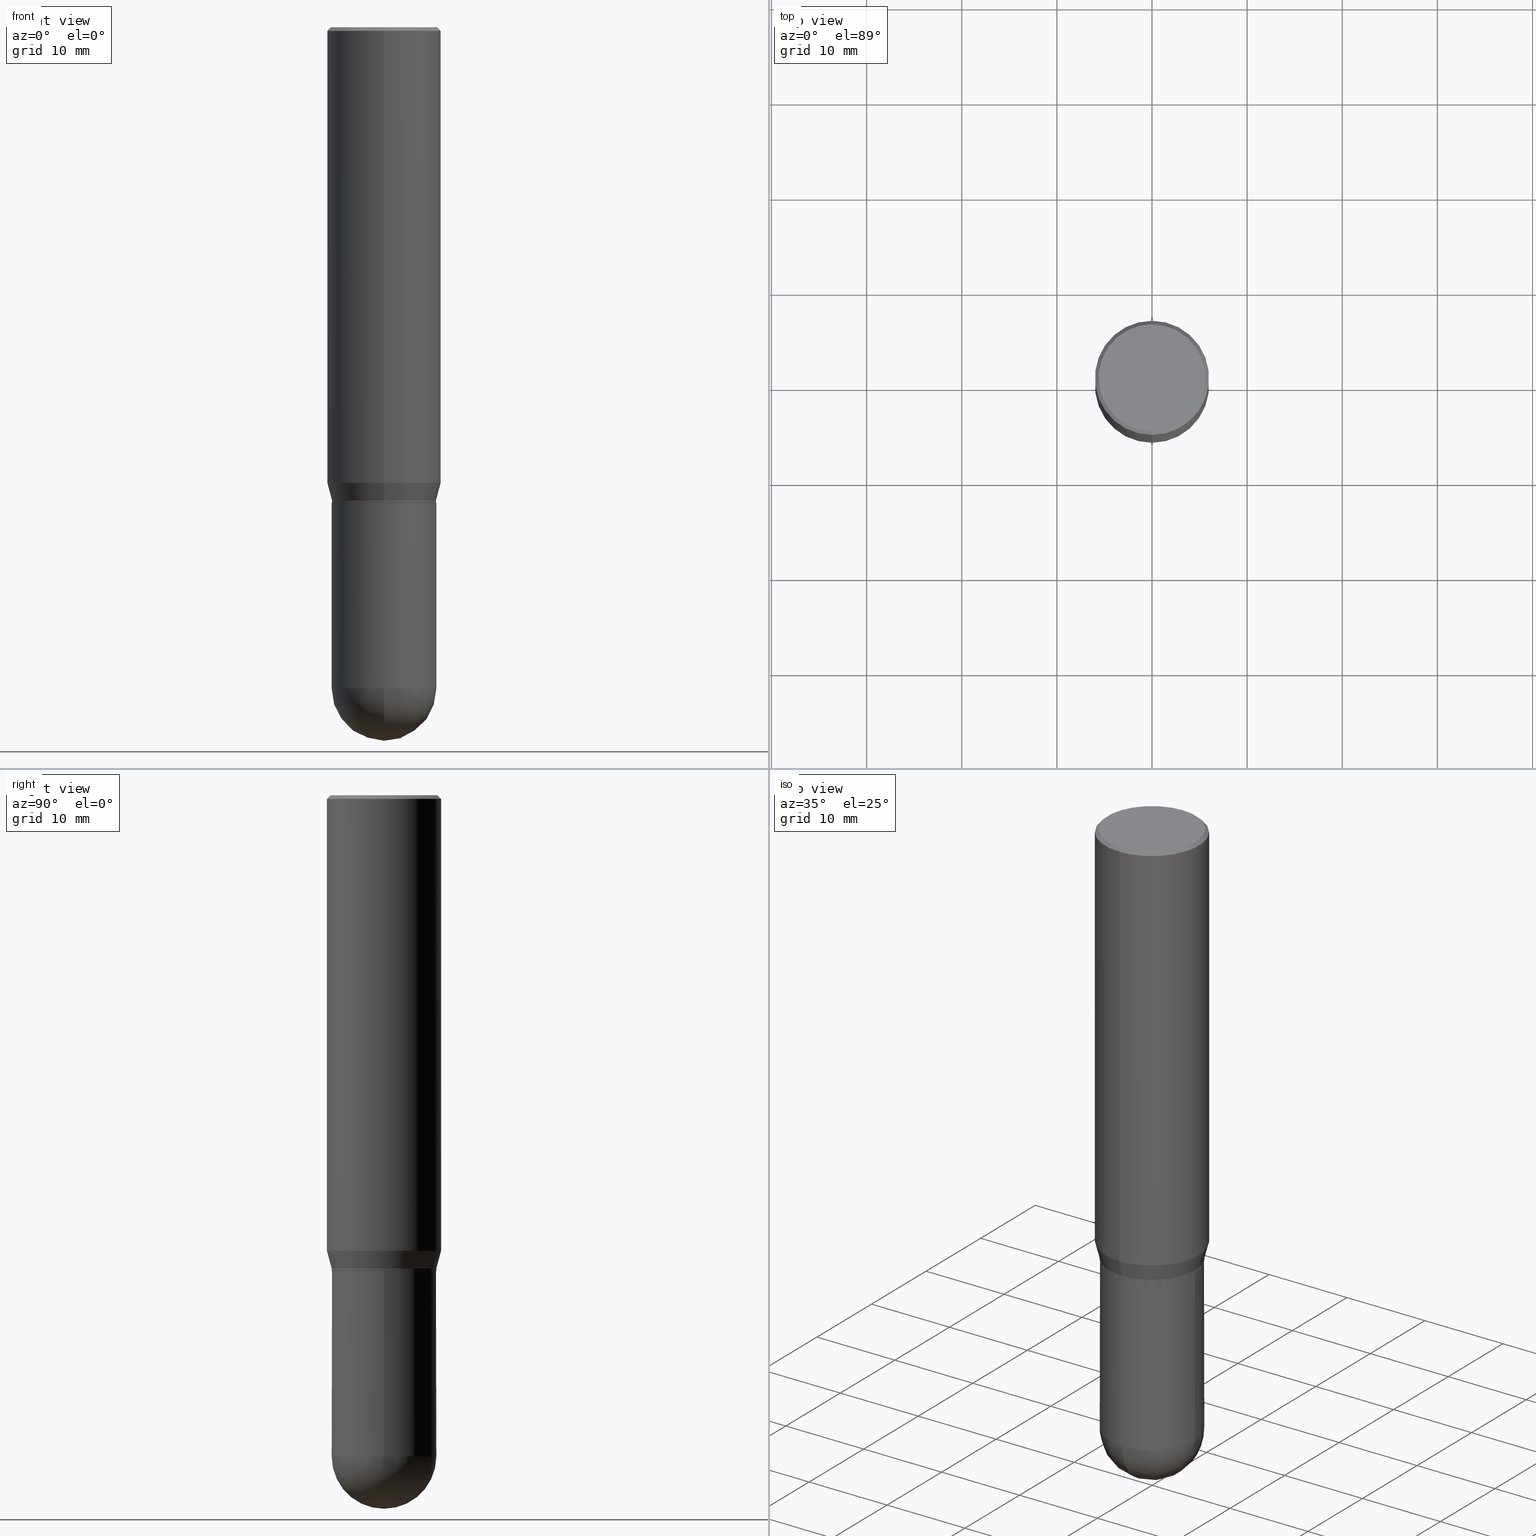
[diagram: canonical four-view strip — front | top / right | iso, engineering-drawing reading convention]
A machine part, canonical four-view strip (front | top / right | iso — engineering-drawing reading convention). The complete STEP part file that produces these views, byte-faithful:
ISO-10303-21;
HEADER;
FILE_DESCRIPTION (( 'STEP AP203' ),
    '1' );
FILE_NAME ('48877.STEP',
    '2024-03-08T13:34:52',
    ( '' ),
    ( '' ),
    'SwSTEP 2.0',
    'SolidWorks 2023',
    '' );
FILE_SCHEMA (( 'CONFIG_CONTROL_DESIGN' ));
ENDSEC;

DATA;
#1 = VERTEX_POINT ( 'NONE', #237 ) ;
#2 = CARTESIAN_POINT ( 'NONE',  ( 3.668468426843755121E-31, -5.236842201614738281E-17, -0.01499999999999978434 ) ) ;
#3 = CARTESIAN_POINT ( 'NONE',  ( -1.512160567852911913E-15, -0.2165500000000067371, -1.967999999999999083 ) ) ;
#4 = CLOSED_SHELL ( 'NONE', ( #165, #34, #481, #214, #74 ) ) ;
#5 = ORIENTED_EDGE ( 'NONE', *, *, #281, .F. ) ;
#6 = LOCAL_TIME ( 8, 34, 52.00000000000000000, #182 ) ;
#7 = LINE ( 'NONE', #193, #379 ) ;
#8 = MANIFOLD_SOLID_BREP ( 'Body-Move/Copy2[1]', #4 ) ;
#9 = ORIENTED_EDGE ( 'NONE', *, *, #396, .T. ) ;
#10 = ADVANCED_FACE ( 'NONE', ( #174 ), #456, .T. ) ;
#11 = CARTESIAN_POINT ( 'NONE',  ( 3.668468426843755121E-31, -5.236842201614738281E-17, -0.01499999999999978434 ) ) ;
#12 = ORIENTED_EDGE ( 'NONE', *, *, #239, .T. ) ;
#13 = EDGE_CURVE ( 'NONE', #58, #405, #32, .T. ) ;
#14 = CARTESIAN_POINT ( 'NONE',  ( 0.2165500000000000480, -9.725433982314102974E-15, -2.736249999999999183 ) ) ;
#15 = ORIENTED_EDGE ( 'NONE', *, *, #441, .T. ) ;
#16 = AXIS2_PLACEMENT_3D ( 'NONE', #434, #357, #486 ) ;
#17 = AXIS2_PLACEMENT_3D ( 'NONE', #31, #145, #185 ) ;
#18 = DIRECTION ( 'NONE',  ( -6.982962677686265922E-15, -1.000000000000000000, 3.793355233044567490E-15 ) ) ;
#19 = CC_DESIGN_PERSON_AND_ORGANIZATION_ASSIGNMENT ( #334, #508, ( #375 ) ) ;
#20 = SPHERICAL_SURFACE ( 'NONE', #226, 0.2165500000000001035 ) ;
#21 = CARTESIAN_POINT ( 'NONE',  ( -5.285488949794086623E-45, 7.545184629615168161E-31, 2.161183497362751472E-16 ) ) ;
#22 = EDGE_CURVE ( 'NONE', #1, #56, #130, .T. ) ;
#23 = ORIENTED_EDGE ( 'NONE', *, *, #143, .F. ) ;
#24 = CARTESIAN_POINT ( 'NONE',  ( -1.568995892090348679E-15, -0.2211999999999999800, 9.883780130677397050E-16 ) ) ;
#25 = DIRECTION ( 'NONE',  ( 1.000000000000000000, -6.982962677686264344E-15, 0.000000000000000000 ) ) ;
#26 = CIRCLE ( 'NONE', #49, 0.2165500000000000203 ) ;
#27 = CARTESIAN_POINT ( 'NONE',  ( 1.538680294288542061E-15, 0.2165499999999928316, -1.958500000000000796 ) ) ;
#28 = CARTESIAN_POINT ( 'NONE',  ( 6.672895394931898871E-29, -9.580085539845092024E-15, -2.736249999999999627 ) ) ;
#29 = CALENDAR_DATE ( 2024, 8, 3 ) ;
#30 = CARTESIAN_POINT ( 'NONE',  ( -1.538680294288430240E-15, -0.2165500000000096792, -2.736249999999998295 ) ) ;
#31 = CARTESIAN_POINT ( 'NONE',  ( 6.691414020924076964E-29, -9.553565813409554172E-15, -2.736249999999999183 ) ) ;
#32 = CIRCLE ( 'NONE', #76, 0.2165500000000000480 ) ;
#33 = CARTESIAN_POINT ( 'NONE',  ( -0.2165500000000000480, 1.538680294288497294E-15, -1.065195393794700063E-29 ) ) ;
#34 = ADVANCED_FACE ( 'NONE', ( #348 ), #20, .T. ) ;
#35 = PERSON_AND_ORGANIZATION ( #158, #505 ) ;
#36 = VERTEX_POINT ( 'NONE', #271 ) ;
#37 = CIRCLE ( 'NONE', #310, 0.2361999999999999933 ) ;
#38 = CC_DESIGN_APPROVAL ( #383, ( #375 ) ) ;
#39 = EDGE_CURVE ( 'NONE', #398, #228, #435, .T. ) ;
#40 = CARTESIAN_POINT ( 'NONE',  ( -1.649375784469449785E-15, -0.2362000000000065436, -1.885165201631269660 ) ) ;
#41 = ORIENTED_EDGE ( 'NONE', *, *, #22, .T. ) ;
#42 = EDGE_LOOP ( 'NONE', ( #152, #203, #512, #5 ) ) ;
#43 = DIRECTION ( 'NONE',  ( -2.445645617895871091E-29, 3.491228134409875712E-15, 1.000000000000000000 ) ) ;
#44 = ORIENTED_EDGE ( 'NONE', *, *, #438, .F. ) ;
#45 = DIRECTION ( 'NONE',  ( -1.000000000000000000, 7.105427357601001070E-15, -4.926315508542082329E-29 ) ) ;
#46 = AXIS2_PLACEMENT_3D ( 'NONE', #295, #364, #507 ) ;
#47 = AXIS2_PLACEMENT_3D ( 'NONE', #307, #465, #85 ) ;
#48 = DIRECTION ( 'NONE',  ( -2.445645617895871651E-29, 3.491228134409875712E-15, 1.000000000000000000 ) ) ;
#49 = AXIS2_PLACEMENT_3D ( 'NONE', #433, #394, #55 ) ;
#50 = EDGE_LOOP ( 'NONE', ( #389, #134, #450, #149 ) ) ;
#51 = DIRECTION ( 'NONE',  ( -2.445645617895871651E-29, 3.491228134409875712E-15, 1.000000000000000000 ) ) ;
#52 = EDGE_CURVE ( 'NONE', #424, #58, #502, .T. ) ;
#53 = ADVANCED_FACE ( 'NONE', ( #98 ), #259, .T. ) ;
#54 = DIRECTION ( 'NONE',  ( 1.000000000000000000, -6.982962677686263555E-15, 0.000000000000000000 ) ) ;
#55 = DIRECTION ( 'NONE',  ( 1.000000000000000000, -6.982962677686264344E-15, 0.000000000000000000 ) ) ;
#56 = VERTEX_POINT ( 'NONE', #332 ) ;
#57 = FACE_OUTER_BOUND ( 'NONE', #244, .T. ) ;
#58 = VERTEX_POINT ( 'NONE', #30 ) ;
#59 = VECTOR ( 'NONE', #349, 39.37007874015748143 ) ;
#60 = EDGE_CURVE ( 'NONE', #484, #88, #213, .T. ) ;
#61 =( CONVERSION_BASED_UNIT ( 'INCH', #279 ) LENGTH_UNIT ( ) NAMED_UNIT ( #79 ) );
#62 = ORIENTED_EDGE ( 'NONE', *, *, #250, .F. ) ;
#63 = FACE_OUTER_BOUND ( 'NONE', #71, .T. ) ;
#64 = CARTESIAN_POINT ( 'NONE',  ( 0.000000000000000000, 0.000000000000000000, 0.000000000000000000 ) ) ;
#65 = EDGE_CURVE ( 'NONE', #424, #338, #115, .T. ) ;
#66 = DIRECTION ( 'NONE',  ( -6.982962677686265922E-15, -1.000000000000000000, 3.491228134409875712E-15 ) ) ;
#67 = AXIS2_PLACEMENT_3D ( 'NONE', #282, #146, #171 ) ;
#68 = CARTESIAN_POINT ( 'NONE',  ( 1.597003564386849249E-15, 0.2211999999999999800, -5.561413135951892626E-16 ) ) ;
#69 = DIRECTION ( 'NONE',  ( -6.982962677686265922E-15, -1.000000000000000000, 3.491228134409875712E-15 ) ) ;
#70 = DIRECTION ( 'NONE',  ( 1.000000000000000000, -6.982962677686266711E-15, 4.876176775795935793E-29 ) ) ;
#71 = EDGE_LOOP ( 'NONE', ( #23, #247, #328, #353 ) ) ;
#72 = APPROVAL_STATUS ( 'not_yet_approved' ) ;
#73 = CYLINDRICAL_SURFACE ( 'NONE', #46, 0.2165499999999997982 ) ;
#74 = ADVANCED_FACE ( 'NONE', ( #506 ), #102, .T. ) ;
#75 = PERSON_AND_ORGANIZATION ( #158, #505 ) ;
#76 = AXIS2_PLACEMENT_3D ( 'NONE', #277, #442, #54 ) ;
#77 = VECTOR ( 'NONE', #162, 39.37007874015748143 ) ;
#78 = CALENDAR_DATE ( 2024, 8, 3 ) ;
#79 = DIMENSIONAL_EXPONENTS ( 1.000000000000000000, 0.000000000000000000, 0.000000000000000000, 0.000000000000000000, 0.000000000000000000, 0.000000000000000000, 0.000000000000000000 ) ;
#80 = COORDINATED_UNIVERSAL_TIME_OFFSET ( 5, 0, .BEHIND. ) ;
#81 = DIRECTION ( 'NONE',  ( -7.105427357601001070E-15, -1.000000000000000000, 0.000000000000000000 ) ) ;
#82 = AXIS2_PLACEMENT_3D ( 'NONE', #138, #387, #393 ) ;
#83 = AXIS2_PLACEMENT_3D ( 'NONE', #177, #241, #97 ) ;
#84 = LOCAL_TIME ( 8, 34, 52.00000000000000000, #264 ) ;
#85 = DIRECTION ( 'NONE',  ( 6.982962677686265922E-15, 1.000000000000000000, -3.491228134409875712E-15 ) ) ;
#86 = DIRECTION ( 'NONE',  ( -6.982962677686265922E-15, -1.000000000000000000, 3.487819265831411744E-15 ) ) ;
#87 = ORIENTED_EDGE ( 'NONE', *, *, #65, .F. ) ;
#88 = VERTEX_POINT ( 'NONE', #500 ) ;
#89 = DIRECTION ( 'NONE',  ( -2.445645617895871651E-29, 3.491228134409875712E-15, 1.000000000000000000 ) ) ;
#90 = AXIS2_PLACEMENT_3D ( 'NONE', #406, #245, #69 ) ;
#91 = AXIS2_PLACEMENT_3D ( 'NONE', #106, #346, #478 ) ;
#92 = DIRECTION ( 'NONE',  ( 6.982962677686265922E-15, 1.000000000000000000, -2.523064413451176940E-15 ) ) ;
#93 = CARTESIAN_POINT ( 'NONE',  ( -1.649375784469495934E-15, -0.2361999999999999933, 8.246280853476126431E-16 ) ) ;
#94 = ORIENTED_EDGE ( 'NONE', *, *, #384, .F. ) ;
#95 = DIRECTION ( 'NONE',  ( -2.445645617895871651E-29, 3.491228134409875712E-15, 1.000000000000000000 ) ) ;
#96 = CARTESIAN_POINT ( 'NONE',  ( 1.678301941865356394E-15, 0.2361999999999999933, -8.246280853476126431E-16 ) ) ;
#97 = DIRECTION ( 'NONE',  ( -1.000000000000000000, 6.982962677686265922E-15, -4.876176775795935793E-29 ) ) ;
#98 = FACE_OUTER_BOUND ( 'NONE', #42, .T. ) ;
#99 = CIRCLE ( 'NONE', #261, 0.2160500000000000198 ) ;
#100 = CC_DESIGN_APPROVAL ( #368, ( #285 ) ) ;
#101 = LINE ( 'NONE', #108, #356 ) ;
#102 = CYLINDRICAL_SURFACE ( 'NONE', #373, 0.2165500000000000480 ) ;
#103 = CARTESIAN_POINT ( 'NONE',  ( 0.000000000000000000, 0.000000000000000000, 0.000000000000000000 ) ) ;
#104 = ADVANCED_FACE ( 'NONE', ( #415 ), #366, .T. ) ;
#105 = VERTEX_POINT ( 'NONE', #210 ) ;
#106 = CARTESIAN_POINT ( 'NONE',  ( 4.813030576019074836E-29, -6.870736968518634247E-15, -1.967999999999999972 ) ) ;
#107 = PRODUCT_DEFINITION_SHAPE ( 'NONE', 'NONE',  #113 ) ;
#108 = CARTESIAN_POINT ( 'NONE',  ( 0.2165500000000000480, -1.512160567852961414E-15, 1.055936080798610176E-29 ) ) ;
#109 = DIRECTION ( 'NONE',  ( -6.982962677686265922E-15, -1.000000000000000000, 3.793355233044567490E-15 ) ) ;
#110 = AXIS2_PLACEMENT_3D ( 'NONE', #2, #200, #86 ) ;
#111 = SHAPE_DEFINITION_REPRESENTATION ( #107, #122 ) ;
#112 = CYLINDRICAL_SURFACE ( 'NONE', #336, 0.2165500000000000480 ) ;
#113 = PRODUCT_DEFINITION ( 'UNKNOWN', '', #285, #352 ) ;
#114 = CALENDAR_DATE ( 2024, 8, 3 ) ;
#115 = LINE ( 'NONE', #33, #118 ) ;
#116 = PERSON_AND_ORGANIZATION_ROLE ( 'creator' ) ;
#117 = FACE_OUTER_BOUND ( 'NONE', #509, .T. ) ;
#118 = VECTOR ( 'NONE', #255, 39.37007874015748143 ) ;
#119 = AXIS2_PLACEMENT_3D ( 'NONE', #195, #45, #81 ) ;
#120 = AXIS2_PLACEMENT_3D ( 'NONE', #103, #179, #294 ) ;
#121 = DATE_TIME_ROLE ( 'creation_date' ) ;
#122 = ADVANCED_BREP_SHAPE_REPRESENTATION ( '48877', ( #8, #318, #120 ), #293 ) ;
#123 = ADVANCED_FACE ( 'NONE', ( #463 ), #327, .T. ) ;
#124 = ORIENTED_EDGE ( 'NONE', *, *, #396, .F. ) ;
#125 = LINE ( 'NONE', #93, #273 ) ;
#126 = AXIS2_PLACEMENT_3D ( 'NONE', #172, #404, #198 ) ;
#127 = AXIS2_PLACEMENT_3D ( 'NONE', #269, #231, #437 ) ;
#128 = DIRECTION ( 'NONE',  ( -4.851104656540965064E-15, -0.7071067811865501263, -0.7071067811865449082 ) ) ;
#129 = DIRECTION ( 'NONE',  ( 6.982962677686265922E-15, 1.000000000000000000, -3.487819265831411744E-15 ) ) ;
#130 = LINE ( 'NONE', #96, #426 ) ;
#131 = PLANE ( 'NONE',  #186 ) ;
#132 = ADVANCED_FACE ( 'NONE', ( #63 ), #73, .T. ) ;
#133 = CIRCLE ( 'NONE', #411, 0.2211999999999999800 ) ;
#134 = ORIENTED_EDGE ( 'NONE', *, *, #60, .T. ) ;
#135 = CC_DESIGN_SECURITY_CLASSIFICATION ( #375, ( #285 ) ) ;
#136 = DIRECTION ( 'NONE',  ( -2.445645617895871651E-29, 3.491228134409875712E-15, 1.000000000000000000 ) ) ;
#137 = EDGE_CURVE ( 'NONE', #432, #105, #258, .T. ) ;
#138 = CARTESIAN_POINT ( 'NONE',  ( 4.814253398828022237E-29, -6.872482582585839042E-15, -1.968499999999999694 ) ) ;
#139 = ORIENTED_EDGE ( 'NONE', *, *, #160, .T. ) ;
#140 = DIRECTION ( 'NONE',  ( -6.982962677686265922E-15, -1.000000000000000000, 3.784596620176768566E-15 ) ) ;
#141 = ORIENTED_EDGE ( 'NONE', *, *, #354, .F. ) ;
#142 = CIRCLE ( 'NONE', #196, 0.2165500000000000480 ) ;
#143 = EDGE_CURVE ( 'NONE', #88, #228, #151, .T. ) ;
#144 = DIRECTION ( 'NONE',  ( 1.000000000000000000, -6.982962677686263555E-15, 0.000000000000000000 ) ) ;
#145 = DIRECTION ( 'NONE',  ( -2.445468806185136597E-29, 3.491481338843145583E-15, 1.000000000000000000 ) ) ;
#146 = DIRECTION ( 'NONE',  ( -2.445645617895871651E-29, 3.491228134409875712E-15, 1.000000000000000000 ) ) ;
#147 = CARTESIAN_POINT ( 'NONE',  ( 4.814253398828022237E-29, -6.872482582585839042E-15, -1.968499999999999694 ) ) ;
#148 = PERSON_AND_ORGANIZATION ( #158, #505 ) ;
#149 = ORIENTED_EDGE ( 'NONE', *, *, #160, .F. ) ;
#150 = CC_DESIGN_PERSON_AND_ORGANIZATION_ASSIGNMENT ( #367, #298, ( #488 ) ) ;
#151 = LINE ( 'NONE', #155, #361 ) ;
#152 = ORIENTED_EDGE ( 'NONE', *, *, #39, .T. ) ;
#153 = DIRECTION ( 'NONE',  ( 1.000000000000000000, -6.982962677686266711E-15, 4.876176775795935793E-29 ) ) ;
#154 = PERSON_AND_ORGANIZATION_ROLE ( 'design_supplier' ) ;
#155 = CARTESIAN_POINT ( 'NONE',  ( 1.538680294288495321E-15, 0.2165499999999997982, -7.560254525064579218E-16 ) ) ;
#156 = SECURITY_CLASSIFICATION_LEVEL ( 'unclassified' ) ;
#157 = APPLICATION_PROTOCOL_DEFINITION ( 'international standard', 'config_control_design', 1994, #303 ) ;
#158 = PERSON ( 'UNSPECIFIED', 'UNSPECIFIED', 'UNSPECIFIED', ('UNSPECIFIED'), ('UNSPECIFIED'), ('UNSPECIFIED') ) ;
#159 = DIRECTION ( 'NONE',  ( -2.445645617895871651E-29, 3.491228134409875712E-15, 1.000000000000000000 ) ) ;
#160 = EDGE_CURVE ( 'NONE', #350, #385, #188, .T. ) ;
#161 = ORIENTED_EDGE ( 'NONE', *, *, #60, .F. ) ;
#162 = DIRECTION ( 'NONE',  ( 4.937700262164548831E-15, 0.7071067811865452413, -0.7071067811865497932 ) ) ;
#163 = CARTESIAN_POINT ( 'NONE',  ( -0.2165500000000000480, -6.674593120172645055E-15, -2.736249999999999183 ) ) ;
#164 = ORIENTED_EDGE ( 'NONE', *, *, #181, .T. ) ;
#165 = ADVANCED_FACE ( 'NONE', ( #460 ), #112, .T. ) ;
#166 = CARTESIAN_POINT ( 'NONE',  ( -1.512160567852910730E-15, -0.2165500000000064873, -1.958499999999999019 ) ) ;
#167 = ORIENTED_EDGE ( 'NONE', *, *, #183, .F. ) ;
#168 = DIRECTION ( 'NONE',  ( -2.445468806185136877E-29, 3.491481338843145188E-15, 1.000000000000000000 ) ) ;
#169 = AXIS2_PLACEMENT_3D ( 'NONE', #205, #95, #212 ) ;
#170 = ORIENTED_EDGE ( 'NONE', *, *, #13, .T. ) ;
#171 = DIRECTION ( 'NONE',  ( -6.982962677686265922E-15, -1.000000000000000000, 3.784596620176773299E-15 ) ) ;
#172 = CARTESIAN_POINT ( 'NONE',  ( 4.789796942649064112E-29, -6.837570301241741551E-15, -1.958499999999999908 ) ) ;
#173 = ORIENTED_EDGE ( 'NONE', *, *, #453, .F. ) ;
#174 = FACE_OUTER_BOUND ( 'NONE', #50, .T. ) ;
#175 = ORIENTED_EDGE ( 'NONE', *, *, #371, .T. ) ;
#176 = DIRECTION ( 'NONE',  ( -2.445468806185136597E-29, 3.491481338843145583E-15, 1.000000000000000000 ) ) ;
#177 = CARTESIAN_POINT ( 'NONE',  ( 1.512160567853008943E-15, 0.2165499999999931369, -1.968500000000000583 ) ) ;
#178 = DIRECTION ( 'NONE',  ( -4.937700262164715281E-15, -0.7071067811865691111, 0.7071067811865257013 ) ) ;
#179 = DIRECTION ( 'NONE',  ( 0.000000000000000000, 0.000000000000000000, 1.000000000000000000 ) ) ;
#180 = DIRECTION ( 'NONE',  ( -2.445645617895871651E-29, 3.491228134409875712E-15, 1.000000000000000000 ) ) ;
#181 = EDGE_CURVE ( 'NONE', #338, #221, #283, .T. ) ;
#182 = COORDINATED_UNIVERSAL_TIME_OFFSET ( 5, 0, .BEHIND. ) ;
#183 = EDGE_CURVE ( 'NONE', #484, #350, #99, .T. ) ;
#184 = ORIENTED_EDGE ( 'NONE', *, *, #223, .F. ) ;
#185 = DIRECTION ( 'NONE',  ( 1.000000000000000000, -6.982962677686263555E-15, 0.000000000000000000 ) ) ;
#186 = AXIS2_PLACEMENT_3D ( 'NONE', #386, #43, #296 ) ;
#187 = LOCAL_TIME ( 8, 34, 52.00000000000000000, #376 ) ;
#188 = LINE ( 'NONE', #447, #457 ) ;
#189 = APPROVAL_ROLE ( '' ) ;
#190 = APPROVAL_STATUS ( 'not_yet_approved' ) ;
#191 = VECTOR ( 'NONE', #407, 39.37007874015748143 ) ;
#192 = EDGE_LOOP ( 'NONE', ( #339, #341 ) ) ;
#193 = CARTESIAN_POINT ( 'NONE',  ( -1.620449627073635079E-15, -0.2362000000000000766, -0.01499999999999896035 ) ) ;
#194 = CARTESIAN_POINT ( 'NONE',  ( -1.508669086514069695E-15, -0.2160500000000068754, -1.968499999999999028 ) ) ;
#195 = CARTESIAN_POINT ( 'NONE',  ( 6.672895394931898871E-29, -9.580085539845092024E-15, -2.736249999999999627 ) ) ;
#196 = AXIS2_PLACEMENT_3D ( 'NONE', #309, #443, #144 ) ;
#197 = APPROVAL_PERSON_ORGANIZATION ( #148, #368, #421 ) ;
#198 = DIRECTION ( 'NONE',  ( -6.982962677686265922E-15, -1.000000000000000000, 3.784596620176773299E-15 ) ) ;
#199 = EDGE_LOOP ( 'NONE', ( #301, #9, #358, #184 ) ) ;
#200 = DIRECTION ( 'NONE',  ( -2.445645617895871651E-29, 3.491228134409875712E-15, 1.000000000000000000 ) ) ;
#201 = ORIENTED_EDGE ( 'NONE', *, *, #378, .F. ) ;
#202 = PLANE ( 'NONE',  #47 ) ;
#203 = ORIENTED_EDGE ( 'NONE', *, *, #448, .T. ) ;
#204 = EDGE_LOOP ( 'NONE', ( #425, #370, #232, #395 ) ) ;
#205 = CARTESIAN_POINT ( 'NONE',  ( -5.285488949794086623E-45, 7.545184629615168161E-31, 2.161183497362751472E-16 ) ) ;
#206 = EDGE_LOOP ( 'NONE', ( #313, #44, #306, #242 ) ) ;
#207 = CARTESIAN_POINT ( 'NONE',  ( 4.789796942649064112E-29, -6.837570301241741551E-15, -1.958499999999999908 ) ) ;
#208 = EDGE_LOOP ( 'NONE', ( #124, #217, #490, #462 ) ) ;
#209 = DIRECTION ( 'NONE',  ( -2.445645617895871651E-29, 3.491228134409875712E-15, 1.000000000000000000 ) ) ;
#210 = CARTESIAN_POINT ( 'NONE',  ( 1.512160567853028073E-15, 0.2165499999999904723, -2.736249999999999627 ) ) ;
#211 = AXIS2_PLACEMENT_3D ( 'NONE', #452, #397, #140 ) ;
#212 = DIRECTION ( 'NONE',  ( -6.982962677686266711E-15, -1.000000000000000000, 3.491228134409875712E-15 ) ) ;
#213 = LINE ( 'NONE', #496, #335 ) ;
#214 = ADVANCED_FACE ( 'NONE', ( #323 ), #251, .T. ) ;
#215 = DATE_AND_TIME ( #114, #459 ) ;
#216 = CARTESIAN_POINT ( 'NONE',  ( 4.813905344975440714E-29, -6.872981015512730918E-15, -1.968499999999999694 ) ) ;
#217 = ORIENTED_EDGE ( 'NONE', *, *, #137, .T. ) ;
#218 = DIRECTION ( 'NONE',  ( -6.982962677686265922E-15, -1.000000000000000000, 3.784596620176773299E-15 ) ) ;
#219 = CIRCLE ( 'NONE', #110, 0.2361999999999999933 ) ;
#220 = DATE_AND_TIME ( #29, #6 ) ;
#221 = VERTEX_POINT ( 'NONE', #369 ) ;
#222 = MECHANICAL_CONTEXT ( 'NONE', #511, 'mechanical' ) ;
#223 = EDGE_CURVE ( 'NONE', #105, #424, #321, .T. ) ;
#224 = DATE_AND_TIME ( #461, #436 ) ;
#225 = EDGE_LOOP ( 'NONE', ( #268, #381, #342, #234 ) ) ;
#226 = AXIS2_PLACEMENT_3D ( 'NONE', #315, #399, #92 ) ;
#227 = ORIENTED_EDGE ( 'NONE', *, *, #181, .F. ) ;
#228 = VERTEX_POINT ( 'NONE', #329 ) ;
#229 = CARTESIAN_POINT ( 'NONE',  ( -1.512160567852959442E-15, -0.2165499999999997982, 7.560254525064579218E-16 ) ) ;
#230 = EDGE_CURVE ( 'NONE', #385, #88, #390, .T. ) ;
#231 = DIRECTION ( 'NONE',  ( 2.445645617895871651E-29, -3.491228134409875712E-15, -1.000000000000000000 ) ) ;
#232 = ORIENTED_EDGE ( 'NONE', *, *, #250, .T. ) ;
#233 = CARTESIAN_POINT ( 'NONE',  ( 4.814253398828022237E-29, -6.872482582585839042E-15, -1.968499999999999694 ) ) ;
#234 = ORIENTED_EDGE ( 'NONE', *, *, #471, .F. ) ;
#235 = CARTESIAN_POINT ( 'NONE',  ( 4.610446014379303463E-29, -6.581541789945557282E-15, -1.885165201631270548 ) ) ;
#236 = AXIS2_PLACEMENT_3D ( 'NONE', #380, #270, #272 ) ;
#237 = CARTESIAN_POINT ( 'NONE',  ( 1.678301941865402543E-15, 0.2361999999999934430, -1.885165201631271215 ) ) ;
#238 = FACE_OUTER_BOUND ( 'NONE', #308, .T. ) ;
#239 = EDGE_CURVE ( 'NONE', #36, #56, #219, .T. ) ;
#240 = ORIENTED_EDGE ( 'NONE', *, *, #489, .T. ) ;
#241 = DIRECTION ( 'NONE',  ( 2.438088387897960049E-29, -3.491481338843145188E-15, -1.000000000000000000 ) ) ;
#242 = ORIENTED_EDGE ( 'NONE', *, *, #416, .T. ) ;
#243 = AXIS2_PLACEMENT_3D ( 'NONE', #11, #304, #474 ) ;
#244 = EDGE_LOOP ( 'NONE', ( #161, #317, #139, #173 ) ) ;
#245 = DIRECTION ( 'NONE',  ( -2.445645617895871651E-29, 3.491228134409875712E-15, 1.000000000000000000 ) ) ;
#246 = DIRECTION ( 'NONE',  ( -2.445645617895871651E-29, 3.491228134409875712E-15, 1.000000000000000000 ) ) ;
#247 = ORIENTED_EDGE ( 'NONE', *, *, #453, .T. ) ;
#248 = DIRECTION ( 'NONE',  ( 5.024295867788231995E-15, 0.7071067811865739960, 0.7071067811865208164 ) ) ;
#249 = LINE ( 'NONE', #27, #191 ) ;
#250 = EDGE_CURVE ( 'NONE', #408, #36, #125, .T. ) ;
#251 = SPHERICAL_SURFACE ( 'NONE', #266, 0.2165500000000001035 ) ;
#252 = AXIS2_PLACEMENT_3D ( 'NONE', #305, #476, #129 ) ;
#253 = EDGE_CURVE ( 'NONE', #228, #398, #402, .T. ) ;
#254 = CARTESIAN_POINT ( 'NONE',  ( 0.000000000000000000, 0.000000000000000000, 0.000000000000000000 ) ) ;
#255 = DIRECTION ( 'NONE',  ( -2.445468806185136877E-29, 3.491481338843145188E-15, 1.000000000000000000 ) ) ;
#256 = PRODUCT_RELATED_PRODUCT_CATEGORY ( 'detail', '', ( #488 ) ) ;
#257 = CARTESIAN_POINT ( 'NONE',  ( -1.512160567852910730E-15, -0.2165500000000064873, -1.958499999999999019 ) ) ;
#258 = CIRCLE ( 'NONE', #388, 0.2165500000000001035 ) ;
#259 = CONICAL_SURFACE ( 'NONE', #400, 0.2165499999999996594, 0.2617993877991502405 ) ;
#260 = EDGE_CURVE ( 'NONE', #350, #484, #374, .T. ) ;
#261 = AXIS2_PLACEMENT_3D ( 'NONE', #147, #454, #109 ) ;
#262 = PERSON_AND_ORGANIZATION ( #158, #505 ) ;
#263 = ORIENTED_EDGE ( 'NONE', *, *, #230, .T. ) ;
#264 = COORDINATED_UNIVERSAL_TIME_OFFSET ( 5, 0, .BEHIND. ) ;
#265 = EDGE_LOOP ( 'NONE', ( #87, #312, #170, #240, #227 ) ) ;
#266 = AXIS2_PLACEMENT_3D ( 'NONE', #412, #286, #451 ) ;
#267 = DIRECTION ( 'NONE',  ( -2.445645617895871651E-29, 3.491228134409875712E-15, 1.000000000000000000 ) ) ;
#268 = ORIENTED_EDGE ( 'NONE', *, *, #448, .F. ) ;
#269 = CARTESIAN_POINT ( 'NONE',  ( 3.668468426843755121E-31, -5.236842201614738281E-17, -0.01499999999999978434 ) ) ;
#270 = DIRECTION ( 'NONE',  ( -2.445645617895871651E-29, 3.491228134409875712E-15, 1.000000000000000000 ) ) ;
#271 = CARTESIAN_POINT ( 'NONE',  ( -1.649375784469495539E-15, -0.2362000000000000766, -0.01499999999999896035 ) ) ;
#272 = DIRECTION ( 'NONE',  ( -6.982962677686265922E-15, -1.000000000000000000, 3.784596620176773299E-15 ) ) ;
#273 = VECTOR ( 'NONE', #267, 39.37007874015748143 ) ;
#274 = APPROVAL_PERSON_ORGANIZATION ( #262, #413, #189 ) ;
#275 = ORIENTED_EDGE ( 'NONE', *, *, #65, .T. ) ;
#276 = DIRECTION ( 'NONE',  ( -2.445645617895871651E-29, 3.491228134409875712E-15, 1.000000000000000000 ) ) ;
#277 = CARTESIAN_POINT ( 'NONE',  ( 6.691414020924076964E-29, -9.553565813409554172E-15, -2.736249999999999183 ) ) ;
#278 = CC_DESIGN_PERSON_AND_ORGANIZATION_ASSIGNMENT ( #501, #154, ( #285 ) ) ;
#279 = LENGTH_MEASURE_WITH_UNIT ( LENGTH_MEASURE( 0.02539999999999999897 ), #314 );
#280 = ORIENTED_EDGE ( 'NONE', *, *, #239, .F. ) ;
#281 = EDGE_CURVE ( 'NONE', #398, #408, #469, .T. ) ;
#282 = CARTESIAN_POINT ( 'NONE',  ( 4.789796942649064112E-29, -6.837570301241741551E-15, -1.958499999999999908 ) ) ;
#283 = CIRCLE ( 'NONE', #504, 0.2165500000000000203 ) ;
#284 = ORIENTED_EDGE ( 'NONE', *, *, #260, .F. ) ;
#285 = PRODUCT_DEFINITION_FORMATION_WITH_SPECIFIED_SOURCE ( 'ANY', '', #488, .NOT_KNOWN. ) ;
#286 = DIRECTION ( 'NONE',  ( -1.000000000000000000, 6.982962677686265922E-15, -4.883557194083112340E-29 ) ) ;
#287 = FACE_OUTER_BOUND ( 'NONE', #225, .T. ) ;
#288 = ADVANCED_FACE ( 'NONE', ( #302 ), #202, .F. ) ;
#289 = DIRECTION ( 'NONE',  ( 6.982962677686265922E-15, 1.000000000000000000, 0.000000000000000000 ) ) ;
#290 = DATE_AND_TIME ( #464, #187 ) ;
#291 = DIRECTION ( 'NONE',  ( -2.445645617895871651E-29, 3.491228134409875712E-15, 1.000000000000000000 ) ) ;
#292 = CONICAL_SURFACE ( 'NONE', #67, 0.2165499999999996594, 0.2617993877991502405 ) ;
#293 =( GEOMETRIC_REPRESENTATION_CONTEXT ( 3 ) GLOBAL_UNCERTAINTY_ASSIGNED_CONTEXT ( ( #470 ) ) GLOBAL_UNIT_ASSIGNED_CONTEXT ( ( #61, #359, #449 ) ) REPRESENTATION_CONTEXT ( 'NONE', 'WORKASPACE' ) );
#294 = DIRECTION ( 'NONE',  ( 1.000000000000000000, 0.000000000000000000, 0.000000000000000000 ) ) ;
#295 = CARTESIAN_POINT ( 'NONE',  ( 0.000000000000000000, 0.000000000000000000, 0.000000000000000000 ) ) ;
#296 = DIRECTION ( 'NONE',  ( -6.982962677686265922E-15, -1.000000000000000000, 3.491228134409875712E-15 ) ) ;
#297 = CONICAL_SURFACE ( 'NONE', #127, 0.2361999999999999933, 0.7853981633974485010 ) ;
#298 = PERSON_AND_ORGANIZATION_ROLE ( 'design_owner' ) ;
#299 = CC_DESIGN_PERSON_AND_ORGANIZATION_ASSIGNMENT ( #75, #116, ( #285 ) ) ;
#300 = EDGE_LOOP ( 'NONE', ( #263, #483, #319, #201 ) ) ;
#301 = ORIENTED_EDGE ( 'NONE', *, *, #137, .F. ) ;
#302 = FACE_OUTER_BOUND ( 'NONE', #192, .T. ) ;
#303 = APPLICATION_CONTEXT ( 'configuration controlled 3d designs of mechanical parts and assemblies' ) ;
#304 = DIRECTION ( 'NONE',  ( -2.445645617895871651E-29, 3.491228134409875712E-15, 1.000000000000000000 ) ) ;
#305 = CARTESIAN_POINT ( 'NONE',  ( 3.668468426843755121E-31, -5.236842201614738281E-17, -0.01499999999999978434 ) ) ;
#306 = ORIENTED_EDGE ( 'NONE', *, *, #384, .T. ) ;
#307 = CARTESIAN_POINT ( 'NONE',  ( 1.544631344304201972E-15, 0.2211999999999999800, -6.642004884633268978E-16 ) ) ;
#308 = EDGE_LOOP ( 'NONE', ( #284, #167 ) ) ;
#309 = CARTESIAN_POINT ( 'NONE',  ( 6.691414020924076964E-29, -9.553565813409554172E-15, -2.736249999999999183 ) ) ;
#310 = AXIS2_PLACEMENT_3D ( 'NONE', #482, #316, #440 ) ;
#311 = CC_DESIGN_DATE_AND_TIME_ASSIGNMENT ( #215, #121, ( #113 ) ) ;
#312 = ORIENTED_EDGE ( 'NONE', *, *, #52, .T. ) ;
#313 = ORIENTED_EDGE ( 'NONE', *, *, #417, .F. ) ;
#314 =( LENGTH_UNIT ( ) NAMED_UNIT ( * ) SI_UNIT ( $, .METRE. ) );
#315 = CARTESIAN_POINT ( 'NONE',  ( 6.672895394931898871E-29, -9.580085539845092024E-15, -2.736249999999999627 ) ) ;
#316 = DIRECTION ( 'NONE',  ( -2.445645617895871651E-29, 3.491228134409875712E-15, 1.000000000000000000 ) ) ;
#317 = ORIENTED_EDGE ( 'NONE', *, *, #183, .T. ) ;
#318 = MANIFOLD_SOLID_BREP ( 'Body-Move/Copy2[2]', #492 ) ;
#319 = ORIENTED_EDGE ( 'NONE', *, *, #39, .F. ) ;
#320 = APPLICATION_PROTOCOL_DEFINITION ( 'international standard', 'config_control_design', 1994, #511 ) ;
#321 = CIRCLE ( 'NONE', #17, 0.2165500000000000480 ) ;
#322 = VECTOR ( 'NONE', #89, 39.37007874015748143 ) ;
#323 = FACE_OUTER_BOUND ( 'NONE', #208, .T. ) ;
#324 = CYLINDRICAL_SURFACE ( 'NONE', #510, 0.2361999999999999933 ) ;
#325 = DIRECTION ( 'NONE',  ( -2.445468806185136597E-29, 3.491481338843145583E-15, 1.000000000000000000 ) ) ;
#326 = DATE_TIME_ROLE ( 'classification_date' ) ;
#327 = CYLINDRICAL_SURFACE ( 'NONE', #491, 0.2361999999999999933 ) ;
#328 = ORIENTED_EDGE ( 'NONE', *, *, #378, .T. ) ;
#329 = CARTESIAN_POINT ( 'NONE',  ( 1.608491118076972302E-15, 0.2165499999999928316, -1.958500000000000796 ) ) ;
#330 = PERSON_AND_ORGANIZATION ( #158, #505 ) ;
#331 = ADVANCED_FACE ( 'NONE', ( #117 ), #297, .T. ) ;
#332 = CARTESIAN_POINT ( 'NONE',  ( 1.678301941865403134E-15, 0.2361999999999999655, -0.01500000000000060833 ) ) ;
#333 = APPROVAL_DATE_TIME ( #224, #413 ) ;
#334 = PERSON_AND_ORGANIZATION ( #158, #505 ) ;
#335 = VECTOR ( 'NONE', #248, 39.37007874015748854 ) ;
#336 = AXIS2_PLACEMENT_3D ( 'NONE', #254, #360, #70 ) ;
#337 = APPROVAL_PERSON_ORGANIZATION ( #330, #383, #414 ) ;
#338 = VERTEX_POINT ( 'NONE', #420 ) ;
#339 = ORIENTED_EDGE ( 'NONE', *, *, #438, .T. ) ;
#340 = FACE_OUTER_BOUND ( 'NONE', #206, .T. ) ;
#341 = ORIENTED_EDGE ( 'NONE', *, *, #475, .T. ) ;
#342 = ORIENTED_EDGE ( 'NONE', *, *, #281, .T. ) ;
#343 = LINE ( 'NONE', #431, #77 ) ;
#344 = ADVANCED_FACE ( 'NONE', ( #238 ), #131, .F. ) ;
#345 = AXIS2_PLACEMENT_3D ( 'NONE', #235, #51, #428 ) ;
#346 = DIRECTION ( 'NONE',  ( -2.445645617895871651E-29, 3.491228134409875712E-15, 1.000000000000000000 ) ) ;
#347 = CC_DESIGN_APPROVAL ( #413, ( #113 ) ) ;
#348 = FACE_OUTER_BOUND ( 'NONE', #199, .T. ) ;
#349 = DIRECTION ( 'NONE',  ( -1.807323732225329745E-15, -0.2588190451025181305, 0.9659258262890689783 ) ) ;
#350 = VERTEX_POINT ( 'NONE', #194 ) ;
#351 = LINE ( 'NONE', #229, #322 ) ;
#352 = DESIGN_CONTEXT ( 'detailed design', #303, 'design' ) ;
#353 = ORIENTED_EDGE ( 'NONE', *, *, #253, .F. ) ;
#354 = EDGE_CURVE ( 'NONE', #221, #338, #26, .T. ) ;
#355 = FACE_OUTER_BOUND ( 'NONE', #503, .T. ) ;
#356 = VECTOR ( 'NONE', #168, 39.37007874015748143 ) ;
#357 = DIRECTION ( 'NONE',  ( -2.445468806185136597E-29, 3.491481338843145583E-15, 1.000000000000000000 ) ) ;
#358 = ORIENTED_EDGE ( 'NONE', *, *, #52, .F. ) ;
#359 =( NAMED_UNIT ( * ) PLANE_ANGLE_UNIT ( ) SI_UNIT ( $, .RADIAN. ) );
#360 = DIRECTION ( 'NONE',  ( -2.445468806185136597E-29, 3.491481338843145583E-15, 1.000000000000000000 ) ) ;
#361 = VECTOR ( 'NONE', #291, 39.37007874015748143 ) ;
#362 = ORIENTED_EDGE ( 'NONE', *, *, #417, .T. ) ;
#363 = CIRCLE ( 'NONE', #169, 0.2211999999999999800 ) ;
#364 = DIRECTION ( 'NONE',  ( -2.445645617895871651E-29, 3.491228134409875712E-15, 1.000000000000000000 ) ) ;
#365 = PLANE ( 'NONE',  #83 ) ;
#366 = CYLINDRICAL_SURFACE ( 'NONE', #90, 0.2165499999999997982 ) ;
#367 = PERSON_AND_ORGANIZATION ( #158, #505 ) ;
#368 = APPROVAL ( #190, 'UNSPECIFIED' ) ;
#369 = CARTESIAN_POINT ( 'NONE',  ( 0.2165500000000000203, -8.385141583365692530E-15, -1.968499999999999694 ) ) ;
#370 = ORIENTED_EDGE ( 'NONE', *, *, #471, .T. ) ;
#371 = EDGE_CURVE ( 'NONE', #408, #1, #473, .T. ) ;
#372 = CARTESIAN_POINT ( 'NONE',  ( 0.000000000000000000, 0.000000000000000000, 0.000000000000000000 ) ) ;
#373 = AXIS2_PLACEMENT_3D ( 'NONE', #372, #176, #153 ) ;
#374 = CIRCLE ( 'NONE', #427, 0.2160500000000000198 ) ;
#375 = SECURITY_CLASSIFICATION ( '', '', #156 ) ;
#376 = COORDINATED_UNIVERSAL_TIME_OFFSET ( 5, 0, .BEHIND. ) ;
#377 = DATE_AND_TIME ( #78, #84 ) ;
#378 = EDGE_CURVE ( 'NONE', #385, #398, #351, .T. ) ;
#379 = VECTOR ( 'NONE', #128, 39.37007874015748143 ) ;
#380 = CARTESIAN_POINT ( 'NONE',  ( 4.789796942649064112E-29, -6.837570301241741551E-15, -1.958499999999999908 ) ) ;
#381 = ORIENTED_EDGE ( 'NONE', *, *, #253, .T. ) ;
#382 = DIRECTION ( 'NONE',  ( -6.982962677686265922E-15, -1.000000000000000000, 3.793355233044567490E-15 ) ) ;
#383 = APPROVAL ( #72, 'UNSPECIFIED' ) ;
#384 = EDGE_CURVE ( 'NONE', #472, #56, #343, .T. ) ;
#385 = VERTEX_POINT ( 'NONE', #3 ) ;
#386 = CARTESIAN_POINT ( 'NONE',  ( 4.814253398828022237E-29, -6.872482582585839042E-15, -1.968499999999999694 ) ) ;
#387 = DIRECTION ( 'NONE',  ( -2.445645617895871651E-29, 3.491228134409875712E-15, 1.000000000000000000 ) ) ;
#388 = AXIS2_PLACEMENT_3D ( 'NONE', #28, #418, #289 ) ;
#389 = ORIENTED_EDGE ( 'NONE', *, *, #260, .T. ) ;
#390 = CIRCLE ( 'NONE', #91, 0.2165499999999999370 ) ;
#391 = CARTESIAN_POINT ( 'NONE',  ( 7.211720977907380015E-29, -1.032290596055380666E-14, -2.952799999999999869 ) ) ;
#392 = CONICAL_SURFACE ( 'NONE', #403, 0.2160500000000000198, 0.7853981633974824739 ) ;
#393 = DIRECTION ( 'NONE',  ( -6.982962677686265922E-15, -1.000000000000000000, 3.793355233044567490E-15 ) ) ;
#394 = DIRECTION ( 'NONE',  ( -2.445468806185136597E-29, 3.491481338843145583E-15, 1.000000000000000000 ) ) ;
#395 = ORIENTED_EDGE ( 'NONE', *, *, #416, .F. ) ;
#396 = EDGE_CURVE ( 'NONE', #432, #58, #446, .T. ) ;
#397 = DIRECTION ( 'NONE',  ( -2.445645617895871651E-29, 3.491228134409875712E-15, 1.000000000000000000 ) ) ;
#398 = VERTEX_POINT ( 'NONE', #257 ) ;
#399 = DIRECTION ( 'NONE',  ( -1.000000000000000000, 6.982962677686265922E-15, -4.883557194083112340E-29 ) ) ;
#400 = AXIS2_PLACEMENT_3D ( 'NONE', #207, #180, #218 ) ;
#401 = DIRECTION ( 'NONE',  ( -6.982962677686265922E-15, -1.000000000000000000, 3.491228134409875712E-15 ) ) ;
#402 = CIRCLE ( 'NONE', #236, 0.2165499999999996594 ) ;
#403 = AXIS2_PLACEMENT_3D ( 'NONE', #494, #246, #18 ) ;
#404 = DIRECTION ( 'NONE',  ( -2.445645617895871651E-29, 3.491228134409875712E-15, 1.000000000000000000 ) ) ;
#405 = VERTEX_POINT ( 'NONE', #14 ) ;
#406 = CARTESIAN_POINT ( 'NONE',  ( 0.000000000000000000, 0.000000000000000000, 0.000000000000000000 ) ) ;
#407 = DIRECTION ( 'NONE',  ( 1.839019923739599921E-15, 0.2588190451025249028, 0.9659258262890670910 ) ) ;
#408 = VERTEX_POINT ( 'NONE', #40 ) ;
#409 = CARTESIAN_POINT ( 'NONE',  ( 0.000000000000000000, 0.000000000000000000, 0.000000000000000000 ) ) ;
#410 = CARTESIAN_POINT ( 'NONE',  ( 1.536903937449144373E-15, 0.2160499999999931364, -1.968500000000000583 ) ) ;
#411 = AXIS2_PLACEMENT_3D ( 'NONE', #21, #136, #445 ) ;
#412 = CARTESIAN_POINT ( 'NONE',  ( 6.672895394931898871E-29, -9.580085539845092024E-15, -2.736249999999999627 ) ) ;
#413 = APPROVAL ( #468, 'UNSPECIFIED' ) ;
#414 = APPROVAL_ROLE ( '' ) ;
#415 = FACE_OUTER_BOUND ( 'NONE', #300, .T. ) ;
#416 = EDGE_CURVE ( 'NONE', #56, #36, #466, .T. ) ;
#417 = EDGE_CURVE ( 'NONE', #439, #36, #7, .T. ) ;
#418 = DIRECTION ( 'NONE',  ( 1.000000000000000000, -6.982962677686265922E-15, 4.883557194083112340E-29 ) ) ;
#419 = COORDINATED_UNIVERSAL_TIME_OFFSET ( 5, 0, .BEHIND. ) ;
#420 = CARTESIAN_POINT ( 'NONE',  ( -0.2165500000000000203, -6.674593120172645055E-15, -1.968499999999999694 ) ) ;
#421 = APPROVAL_ROLE ( '' ) ;
#422 = PERSON_AND_ORGANIZATION_ROLE ( 'creator' ) ;
#423 = ORIENTED_EDGE ( 'NONE', *, *, #475, .F. ) ;
#424 = VERTEX_POINT ( 'NONE', #163 ) ;
#425 = ORIENTED_EDGE ( 'NONE', *, *, #22, .F. ) ;
#426 = VECTOR ( 'NONE', #48, 39.37007874015748143 ) ;
#427 = AXIS2_PLACEMENT_3D ( 'NONE', #233, #159, #382 ) ;
#428 = DIRECTION ( 'NONE',  ( -6.982962677686265922E-15, -1.000000000000000000, 3.469747663417777397E-15 ) ) ;
#429 = ADVANCED_FACE ( 'NONE', ( #340 ), #480, .T. ) ;
#430 = ORIENTED_EDGE ( 'NONE', *, *, #489, .F. ) ;
#431 = CARTESIAN_POINT ( 'NONE',  ( 1.649375784469496525E-15, 0.2361999999999999378, -0.01500000000000060833 ) ) ;
#432 = VERTEX_POINT ( 'NONE', #391 ) ;
#433 = CARTESIAN_POINT ( 'NONE',  ( 4.813905344975440714E-29, -6.872981015512730918E-15, -1.968499999999999694 ) ) ;
#434 = CARTESIAN_POINT ( 'NONE',  ( 6.691414020924076964E-29, -9.553565813409554172E-15, -2.736249999999999183 ) ) ;
#435 = CIRCLE ( 'NONE', #126, 0.2165499999999996594 ) ;
#436 = LOCAL_TIME ( 8, 34, 52.00000000000000000, #419 ) ;
#437 = DIRECTION ( 'NONE',  ( 6.982962677686265922E-15, 1.000000000000000000, -3.487819265831411744E-15 ) ) ;
#438 = EDGE_CURVE ( 'NONE', #472, #439, #133, .T. ) ;
#439 = VERTEX_POINT ( 'NONE', #24 ) ;
#440 = DIRECTION ( 'NONE',  ( -6.982962677686265922E-15, -1.000000000000000000, 3.469747663417777397E-15 ) ) ;
#441 = EDGE_CURVE ( 'NONE', #405, #105, #142, .T. ) ;
#442 = DIRECTION ( 'NONE',  ( -2.445468806185136597E-29, 3.491481338843145583E-15, 1.000000000000000000 ) ) ;
#443 = DIRECTION ( 'NONE',  ( -2.445468806185136597E-29, 3.491481338843145583E-15, 1.000000000000000000 ) ) ;
#444 = EDGE_LOOP ( 'NONE', ( #479, #275, #141, #430, #15 ) ) ;
#445 = DIRECTION ( 'NONE',  ( -6.982962677686266711E-15, -1.000000000000000000, 3.491228134409875712E-15 ) ) ;
#446 = CIRCLE ( 'NONE', #119, 0.2165500000000001035 ) ;
#447 = CARTESIAN_POINT ( 'NONE',  ( -1.508669086514069695E-15, -0.2160500000000068754, -1.968499999999999028 ) ) ;
#448 = EDGE_CURVE ( 'NONE', #228, #1, #249, .T. ) ;
#449 =( NAMED_UNIT ( * ) SI_UNIT ( $, .STERADIAN. ) SOLID_ANGLE_UNIT ( ) );
#450 = ORIENTED_EDGE ( 'NONE', *, *, #230, .F. ) ;
#451 = DIRECTION ( 'NONE',  ( 6.982962677686265922E-15, 1.000000000000000000, -2.523064413451176940E-15 ) ) ;
#452 = CARTESIAN_POINT ( 'NONE',  ( 4.813030576019074836E-29, -6.870736968518634247E-15, -1.967999999999999972 ) ) ;
#453 = EDGE_CURVE ( 'NONE', #88, #385, #493, .T. ) ;
#454 = DIRECTION ( 'NONE',  ( -2.445645617895871651E-29, 3.491228134409875712E-15, 1.000000000000000000 ) ) ;
#455 = APPROVAL_DATE_TIME ( #290, #383 ) ;
#456 = CONICAL_SURFACE ( 'NONE', #82, 0.2160500000000000198, 0.7853981633974824739 ) ;
#457 = VECTOR ( 'NONE', #178, 39.37007874015748854 ) ;
#458 = ADVANCED_FACE ( 'NONE', ( #287 ), #292, .T. ) ;
#459 = LOCAL_TIME ( 8, 34, 52.00000000000000000, #80 ) ;
#460 = FACE_OUTER_BOUND ( 'NONE', #444, .T. ) ;
#461 = CALENDAR_DATE ( 2024, 8, 3 ) ;
#462 = ORIENTED_EDGE ( 'NONE', *, *, #13, .F. ) ;
#463 = FACE_OUTER_BOUND ( 'NONE', #204, .T. ) ;
#464 = CALENDAR_DATE ( 2024, 8, 3 ) ;
#465 = DIRECTION ( 'NONE',  ( 2.445645617895871091E-29, -3.491228134409875712E-15, -1.000000000000000000 ) ) ;
#466 = CIRCLE ( 'NONE', #243, 0.2361999999999999933 ) ;
#467 = ADVANCED_FACE ( 'NONE', ( #485 ), #324, .T. ) ;
#468 = APPROVAL_STATUS ( 'not_yet_approved' ) ;
#469 = LINE ( 'NONE', #166, #59 ) ;
#470 = UNCERTAINTY_MEASURE_WITH_UNIT (LENGTH_MEASURE( 1.000000000000000082E-05 ), #61, 'distance_accuracy_value', 'NONE');
#471 = EDGE_CURVE ( 'NONE', #1, #408, #37, .T. ) ;
#472 = VERTEX_POINT ( 'NONE', #68 ) ;
#473 = CIRCLE ( 'NONE', #345, 0.2361999999999999933 ) ;
#474 = DIRECTION ( 'NONE',  ( -6.982962677686265922E-15, -1.000000000000000000, 3.487819265831411744E-15 ) ) ;
#475 = EDGE_CURVE ( 'NONE', #439, #472, #363, .T. ) ;
#476 = DIRECTION ( 'NONE',  ( 2.445645617895871651E-29, -3.491228134409875712E-15, -1.000000000000000000 ) ) ;
#477 = ORIENTED_EDGE ( 'NONE', *, *, #354, .T. ) ;
#478 = DIRECTION ( 'NONE',  ( -6.982962677686265922E-15, -1.000000000000000000, 3.784596620176768566E-15 ) ) ;
#479 = ORIENTED_EDGE ( 'NONE', *, *, #223, .T. ) ;
#480 = CONICAL_SURFACE ( 'NONE', #252, 0.2361999999999999933, 0.7853981633974485010 ) ;
#481 = ADVANCED_FACE ( 'NONE', ( #355 ), #365, .F. ) ;
#482 = CARTESIAN_POINT ( 'NONE',  ( 4.610446014379303463E-29, -6.581541789945557282E-15, -1.885165201631270548 ) ) ;
#483 = ORIENTED_EDGE ( 'NONE', *, *, #143, .T. ) ;
#484 = VERTEX_POINT ( 'NONE', #410 ) ;
#485 = FACE_OUTER_BOUND ( 'NONE', #499, .T. ) ;
#486 = DIRECTION ( 'NONE',  ( 1.000000000000000000, -6.982962677686263555E-15, 0.000000000000000000 ) ) ;
#487 = CC_DESIGN_DATE_AND_TIME_ASSIGNMENT ( #220, #326, ( #375 ) ) ;
#488 = PRODUCT ( '48877', '48877', '', ( #222 ) ) ;
#489 = EDGE_CURVE ( 'NONE', #405, #221, #101, .T. ) ;
#490 = ORIENTED_EDGE ( 'NONE', *, *, #441, .F. ) ;
#491 = AXIS2_PLACEMENT_3D ( 'NONE', #409, #209, #66 ) ;
#492 = CLOSED_SHELL ( 'NONE', ( #104, #10, #331, #467, #53, #458, #123, #429, #288, #344, #498, #132 ) ) ;
#493 = CIRCLE ( 'NONE', #211, 0.2165499999999999370 ) ;
#494 = CARTESIAN_POINT ( 'NONE',  ( 4.814253398828022237E-29, -6.872482582585839042E-15, -1.968499999999999694 ) ) ;
#495 = CC_DESIGN_PERSON_AND_ORGANIZATION_ASSIGNMENT ( #35, #422, ( #113 ) ) ;
#496 = CARTESIAN_POINT ( 'NONE',  ( 1.535127580609744318E-15, 0.2160499999999931364, -1.968500000000000583 ) ) ;
#497 = APPROVAL_DATE_TIME ( #377, #368 ) ;
#498 = ADVANCED_FACE ( 'NONE', ( #57 ), #392, .T. ) ;
#499 = EDGE_LOOP ( 'NONE', ( #175, #41, #280, #62 ) ) ;
#500 = CARTESIAN_POINT ( 'NONE',  ( 1.538680294288544822E-15, 0.2165499999999931369, -1.968000000000000638 ) ) ;
#501 = PERSON_AND_ORGANIZATION ( #158, #505 ) ;
#502 = CIRCLE ( 'NONE', #16, 0.2165500000000000480 ) ;
#503 = EDGE_LOOP ( 'NONE', ( #477, #164 ) ) ;
#504 = AXIS2_PLACEMENT_3D ( 'NONE', #216, #325, #25 ) ;
#505 = ORGANIZATION ( 'UNSPECIFIED', 'UNSPECIFIED', '' ) ;
#506 = FACE_OUTER_BOUND ( 'NONE', #265, .T. ) ;
#507 = DIRECTION ( 'NONE',  ( -6.982962677686265922E-15, -1.000000000000000000, 3.491228134409875712E-15 ) ) ;
#508 = PERSON_AND_ORGANIZATION_ROLE ( 'classification_officer' ) ;
#509 = EDGE_LOOP ( 'NONE', ( #423, #362, #12, #94 ) ) ;
#510 = AXIS2_PLACEMENT_3D ( 'NONE', #64, #276, #401 ) ;
#511 = APPLICATION_CONTEXT ( 'configuration controlled 3d designs of mechanical parts and assemblies' ) ;
#512 = ORIENTED_EDGE ( 'NONE', *, *, #371, .F. ) ;
ENDSEC;
END-ISO-10303-21;
